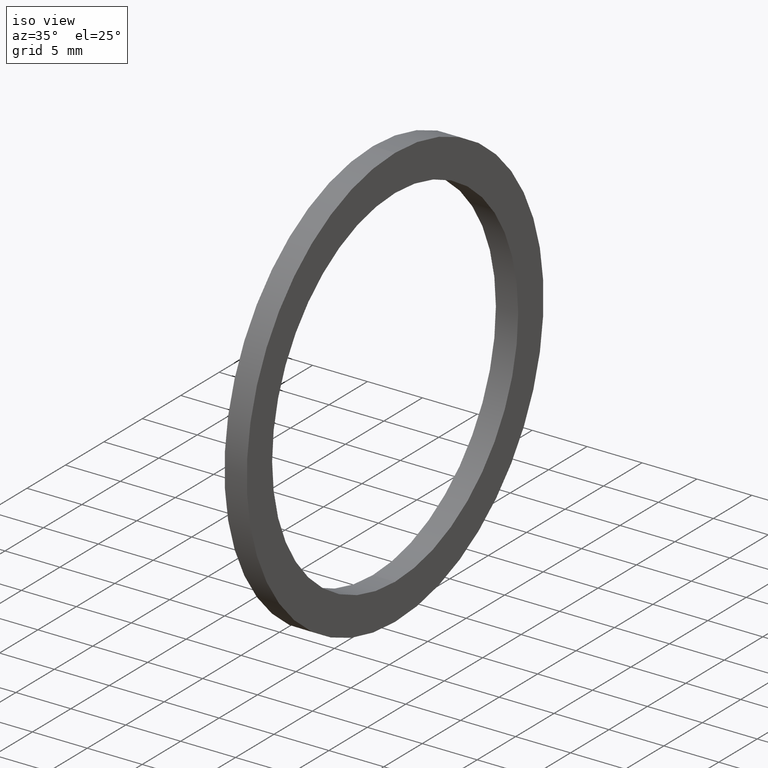
[diagram: clean part render]
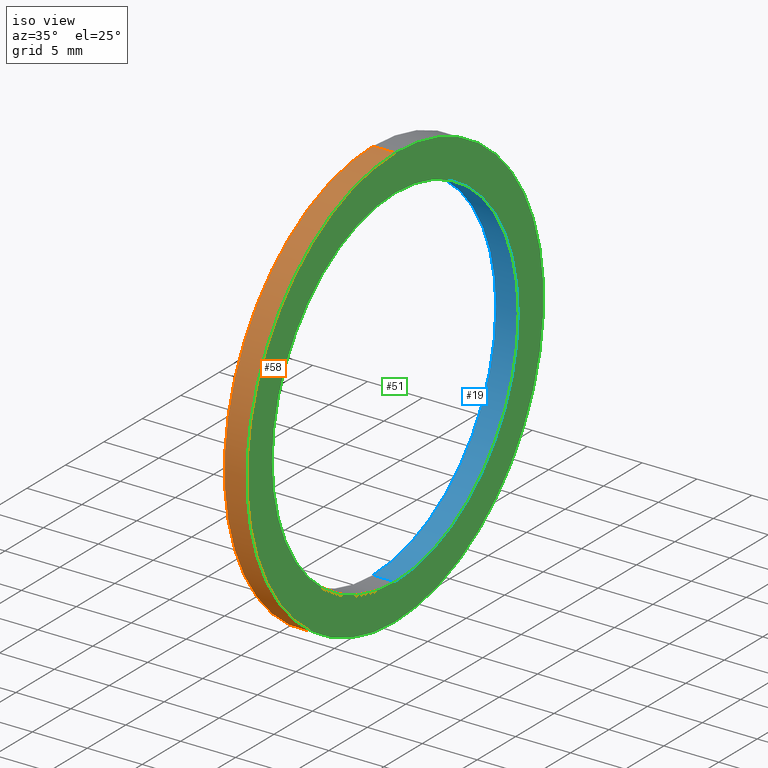
[diagram: same view with three faces highlighted in distinct colors, each labeled with its STEP entity id]
A machine part, iso view with three faces highlighted in distinct colors.
Their STEP definitions:

[orange] entity #58 — the highlighted cylindrical surface (partial cylindrical patch) has radius 19.304 mm, axis along (-1, 0, 0).
#5 = CIRCLE ( 'NONE', #6, 0.7599999999999999000 ) ;
#6 = AXIS2_PLACEMENT_3D ( 'NONE', #7, #8, #9 ) ;
#7 = CARTESIAN_POINT ( 'NONE',  ( 0.07999999999999996000, 0.0000000000000000000, 0.0000000000000000000 ) ) ;
#8 = DIRECTION ( 'NONE',  ( -1.000000000000000000, 0.0000000000000000000, 0.0000000000000000000 ) ) ;
#9 = DIRECTION ( 'NONE',  ( 0.0000000000000000000, 0.0000000000000000000, 1.000000000000000000 ) ) ;
#11 = VERTEX_POINT ( 'NONE', #121 ) ;
#14 = EDGE_CURVE ( 'NONE', #32, #11, #84, .T. ) ;
#32 = VERTEX_POINT ( 'NONE', #89 ) ;
#34 = EDGE_CURVE ( 'NONE', #42, #43, #112, .T. ) ;
#42 = VERTEX_POINT ( 'NONE', #143 ) ;
#43 = VERTEX_POINT ( 'NONE', #142 ) ;
#49 = ORIENTED_EDGE ( 'NONE', *, *, #63, .F. ) ;
#52 = ORIENTED_EDGE ( 'NONE', *, *, #14, .T. ) ;
#54 = ORIENTED_EDGE ( 'NONE', *, *, #56, .T. ) ;
#55 = ORIENTED_EDGE ( 'NONE', *, *, #34, .F. ) ;
#56 = EDGE_CURVE ( 'NONE', #42, #32, #5, .T. ) ;
#58 = ADVANCED_FACE ( 'NONE', ( #207 ), #151, .T. ) ;
#61 = EDGE_LOOP ( 'NONE', ( #55, #54, #52, #49 ) ) ;
#63 = EDGE_CURVE ( 'NONE', #43, #11, #154, .T. ) ;
#81 = DIRECTION ( 'NONE',  ( -1.000000000000000000, 0.0000000000000000000, 0.0000000000000000000 ) ) ;
#82 = VECTOR ( 'NONE', #81, 39.37007874015748100 ) ;
#83 = CARTESIAN_POINT ( 'NONE',  ( -1.721125226614714300, 0.0000000000000000000, 0.7599999999999999000 ) ) ;
#84 = LINE ( 'NONE', #83, #82 ) ;
#89 = CARTESIAN_POINT ( 'NONE',  ( 0.07999999999999996000, 0.0000000000000000000, 0.7599999999999999000 ) ) ;
#109 = DIRECTION ( 'NONE',  ( -1.000000000000000000, 0.0000000000000000000, 0.0000000000000000000 ) ) ;
#110 = VECTOR ( 'NONE', #109, 39.37007874015748100 ) ;
#111 = CARTESIAN_POINT ( 'NONE',  ( -1.721125226614714300, 9.307315673519883500E-017, -0.7599999999999999000 ) ) ;
#112 = LINE ( 'NONE', #111, #110 ) ;
#121 = CARTESIAN_POINT ( 'NONE',  ( 0.0000000000000000000, 0.0000000000000000000, 0.7599999999999999000 ) ) ;
#142 = CARTESIAN_POINT ( 'NONE',  ( 0.0000000000000000000, 9.307315673519883500E-017, -0.7599999999999999000 ) ) ;
#143 = CARTESIAN_POINT ( 'NONE',  ( 0.07999999999999996000, 9.307315673519883500E-017, -0.7599999999999999000 ) ) ;
#151 = CYLINDRICAL_SURFACE ( 'NONE', #206, 0.7599999999999999000 ) ;
#153 = AXIS2_PLACEMENT_3D ( 'NONE', #205, #204, #203 ) ;
#154 = CIRCLE ( 'NONE', #153, 0.7599999999999999000 ) ;
#177 = DIRECTION ( 'NONE',  ( -1.000000000000000000, 0.0000000000000000000, 0.0000000000000000000 ) ) ;
#203 = DIRECTION ( 'NONE',  ( 0.0000000000000000000, 0.0000000000000000000, 1.000000000000000000 ) ) ;
#204 = DIRECTION ( 'NONE',  ( -1.000000000000000000, 0.0000000000000000000, 0.0000000000000000000 ) ) ;
#205 = CARTESIAN_POINT ( 'NONE',  ( 0.0000000000000000000, 0.0000000000000000000, 0.0000000000000000000 ) ) ;
#206 = AXIS2_PLACEMENT_3D ( 'NONE', #242, #177, #208 ) ;
#207 = FACE_OUTER_BOUND ( 'NONE', #61, .T. ) ;
#208 = DIRECTION ( 'NONE',  ( 0.0000000000000000000, 0.0000000000000000000, 1.000000000000000000 ) ) ;
#242 = CARTESIAN_POINT ( 'NONE',  ( -1.721125226614714300, 0.0000000000000000000, 0.0000000000000000000 ) ) ;

[blue] entity #19 — the highlighted cylindrical surface (partial cylindrical patch) has radius 16.002 mm, axis along (-1, 0, 0).
#1 = ORIENTED_EDGE ( 'NONE', *, *, #37, .T. ) ;
#2 = ORIENTED_EDGE ( 'NONE', *, *, #59, .T. ) ;
#3 = ORIENTED_EDGE ( 'NONE', *, *, #22, .F. ) ;
#4 = ORIENTED_EDGE ( 'NONE', *, *, #45, .F. ) ;
#19 = ADVANCED_FACE ( 'NONE', ( #85 ), #70, .F. ) ;
#20 = EDGE_LOOP ( 'NONE', ( #4, #3, #1, #2 ) ) ;
#22 = EDGE_CURVE ( 'NONE', #28, #27, #96, .T. ) ;
#26 = VERTEX_POINT ( 'NONE', #124 ) ;
#27 = VERTEX_POINT ( 'NONE', #123 ) ;
#28 = VERTEX_POINT ( 'NONE', #122 ) ;
#37 = EDGE_CURVE ( 'NONE', #28, #26, #108, .T. ) ;
#39 = VERTEX_POINT ( 'NONE', #103 ) ;
#45 = EDGE_CURVE ( 'NONE', #27, #39, #141, .T. ) ;
#59 = EDGE_CURVE ( 'NONE', #26, #39, #220, .T. ) ;
#70 = CYLINDRICAL_SURFACE ( 'NONE', #71, 0.6300000000000000000 ) ;
#71 = AXIS2_PLACEMENT_3D ( 'NONE', #77, #76, #75 ) ;
#75 = DIRECTION ( 'NONE',  ( 0.0000000000000000000, 0.0000000000000000000, 1.000000000000000000 ) ) ;
#76 = DIRECTION ( 'NONE',  ( -1.000000000000000000, 0.0000000000000000000, 0.0000000000000000000 ) ) ;
#77 = CARTESIAN_POINT ( 'NONE',  ( -1.721125226614714300, 0.0000000000000000000, 0.0000000000000000000 ) ) ;
#85 = FACE_OUTER_BOUND ( 'NONE', #20, .T. ) ;
#92 = DIRECTION ( 'NONE',  ( 0.0000000000000000000, 0.0000000000000000000, 1.000000000000000000 ) ) ;
#93 = DIRECTION ( 'NONE',  ( -1.000000000000000000, 0.0000000000000000000, 0.0000000000000000000 ) ) ;
#94 = CARTESIAN_POINT ( 'NONE',  ( 0.07999999999999996000, 0.0000000000000000000, 0.0000000000000000000 ) ) ;
#95 = AXIS2_PLACEMENT_3D ( 'NONE', #94, #93, #92 ) ;
#96 = CIRCLE ( 'NONE', #95, 0.6300000000000000000 ) ;
#103 = CARTESIAN_POINT ( 'NONE',  ( 0.0000000000000000000, 7.715274834628325400E-017, -0.6300000000000000000 ) ) ;
#104 = DIRECTION ( 'NONE',  ( -1.000000000000000000, 0.0000000000000000000, 0.0000000000000000000 ) ) ;
#105 = VECTOR ( 'NONE', #104, 39.37007874015748100 ) ;
#106 = CARTESIAN_POINT ( 'NONE',  ( -1.721125226614714300, 0.0000000000000000000, 0.6300000000000000000 ) ) ;
#108 = LINE ( 'NONE', #106, #105 ) ;
#122 = CARTESIAN_POINT ( 'NONE',  ( 0.07999999999999996000, 0.0000000000000000000, 0.6300000000000000000 ) ) ;
#123 = CARTESIAN_POINT ( 'NONE',  ( 0.07999999999999996000, 7.715274834628325400E-017, -0.6300000000000000000 ) ) ;
#124 = CARTESIAN_POINT ( 'NONE',  ( 0.0000000000000000000, 0.0000000000000000000, 0.6300000000000000000 ) ) ;
#138 = DIRECTION ( 'NONE',  ( -1.000000000000000000, 0.0000000000000000000, 0.0000000000000000000 ) ) ;
#139 = VECTOR ( 'NONE', #138, 39.37007874015748100 ) ;
#140 = CARTESIAN_POINT ( 'NONE',  ( -1.721125226614714300, 7.715274834628325400E-017, -0.6300000000000000000 ) ) ;
#141 = LINE ( 'NONE', #140, #139 ) ;
#171 = DIRECTION ( 'NONE',  ( 0.0000000000000000000, 0.0000000000000000000, 1.000000000000000000 ) ) ;
#175 = DIRECTION ( 'NONE',  ( -1.000000000000000000, 0.0000000000000000000, 0.0000000000000000000 ) ) ;
#176 = CARTESIAN_POINT ( 'NONE',  ( 0.0000000000000000000, 0.0000000000000000000, 0.0000000000000000000 ) ) ;
#220 = CIRCLE ( 'NONE', #223, 0.6300000000000000000 ) ;
#223 = AXIS2_PLACEMENT_3D ( 'NONE', #176, #175, #171 ) ;

[green] entity #51 — the highlighted planar face has unit normal (1, 0, 0).
#5 = CIRCLE ( 'NONE', #6, 0.7599999999999999000 ) ;
#6 = AXIS2_PLACEMENT_3D ( 'NONE', #7, #8, #9 ) ;
#7 = CARTESIAN_POINT ( 'NONE',  ( 0.07999999999999996000, 0.0000000000000000000, 0.0000000000000000000 ) ) ;
#8 = DIRECTION ( 'NONE',  ( -1.000000000000000000, 0.0000000000000000000, 0.0000000000000000000 ) ) ;
#9 = DIRECTION ( 'NONE',  ( 0.0000000000000000000, 0.0000000000000000000, 1.000000000000000000 ) ) ;
#18 = ORIENTED_EDGE ( 'NONE', *, *, #56, .F. ) ;
#21 = EDGE_LOOP ( 'NONE', ( #53, #18 ) ) ;
#22 = EDGE_CURVE ( 'NONE', #28, #27, #96, .T. ) ;
#23 = ORIENTED_EDGE ( 'NONE', *, *, #38, .T. ) ;
#27 = VERTEX_POINT ( 'NONE', #123 ) ;
#28 = VERTEX_POINT ( 'NONE', #122 ) ;
#32 = VERTEX_POINT ( 'NONE', #89 ) ;
#38 = EDGE_CURVE ( 'NONE', #27, #28, #102, .T. ) ;
#41 = EDGE_CURVE ( 'NONE', #32, #42, #148, .T. ) ;
#42 = VERTEX_POINT ( 'NONE', #143 ) ;
#48 = ORIENTED_EDGE ( 'NONE', *, *, #22, .T. ) ;
#50 = EDGE_LOOP ( 'NONE', ( #48, #23 ) ) ;
#51 = ADVANCED_FACE ( 'NONE', ( #137, #136 ), #135, .T. ) ;
#53 = ORIENTED_EDGE ( 'NONE', *, *, #41, .F. ) ;
#56 = EDGE_CURVE ( 'NONE', #42, #32, #5, .T. ) ;
#89 = CARTESIAN_POINT ( 'NONE',  ( 0.07999999999999996000, 0.0000000000000000000, 0.7599999999999999000 ) ) ;
#92 = DIRECTION ( 'NONE',  ( 0.0000000000000000000, 0.0000000000000000000, 1.000000000000000000 ) ) ;
#93 = DIRECTION ( 'NONE',  ( -1.000000000000000000, 0.0000000000000000000, 0.0000000000000000000 ) ) ;
#94 = CARTESIAN_POINT ( 'NONE',  ( 0.07999999999999996000, 0.0000000000000000000, 0.0000000000000000000 ) ) ;
#95 = AXIS2_PLACEMENT_3D ( 'NONE', #94, #93, #92 ) ;
#96 = CIRCLE ( 'NONE', #95, 0.6300000000000000000 ) ;
#98 = DIRECTION ( 'NONE',  ( 0.0000000000000000000, 0.0000000000000000000, 1.000000000000000000 ) ) ;
#99 = DIRECTION ( 'NONE',  ( -1.000000000000000000, 0.0000000000000000000, 0.0000000000000000000 ) ) ;
#100 = CARTESIAN_POINT ( 'NONE',  ( 0.07999999999999996000, 0.0000000000000000000, 0.0000000000000000000 ) ) ;
#101 = AXIS2_PLACEMENT_3D ( 'NONE', #100, #99, #98 ) ;
#102 = CIRCLE ( 'NONE', #101, 0.6300000000000000000 ) ;
#122 = CARTESIAN_POINT ( 'NONE',  ( 0.07999999999999996000, 0.0000000000000000000, 0.6300000000000000000 ) ) ;
#123 = CARTESIAN_POINT ( 'NONE',  ( 0.07999999999999996000, 7.715274834628325400E-017, -0.6300000000000000000 ) ) ;
#131 = DIRECTION ( 'NONE',  ( 0.0000000000000000000, 0.0000000000000000000, -1.000000000000000000 ) ) ;
#132 = DIRECTION ( 'NONE',  ( 1.000000000000000000, 0.0000000000000000000, 0.0000000000000000000 ) ) ;
#133 = CARTESIAN_POINT ( 'NONE',  ( 0.08000000000000002900, -0.6300000000000000000, 0.0000000000000000000 ) ) ;
#134 = AXIS2_PLACEMENT_3D ( 'NONE', #133, #132, #131 ) ;
#135 = PLANE ( 'NONE',  #134 ) ;
#136 = FACE_OUTER_BOUND ( 'NONE', #21, .T. ) ;
#137 = FACE_BOUND ( 'NONE', #50, .T. ) ;
#143 = CARTESIAN_POINT ( 'NONE',  ( 0.07999999999999996000, 9.307315673519883500E-017, -0.7599999999999999000 ) ) ;
#144 = DIRECTION ( 'NONE',  ( 0.0000000000000000000, 0.0000000000000000000, 1.000000000000000000 ) ) ;
#145 = DIRECTION ( 'NONE',  ( -1.000000000000000000, 0.0000000000000000000, 0.0000000000000000000 ) ) ;
#146 = CARTESIAN_POINT ( 'NONE',  ( 0.07999999999999996000, 0.0000000000000000000, 0.0000000000000000000 ) ) ;
#147 = AXIS2_PLACEMENT_3D ( 'NONE', #146, #145, #144 ) ;
#148 = CIRCLE ( 'NONE', #147, 0.7599999999999999000 ) ;